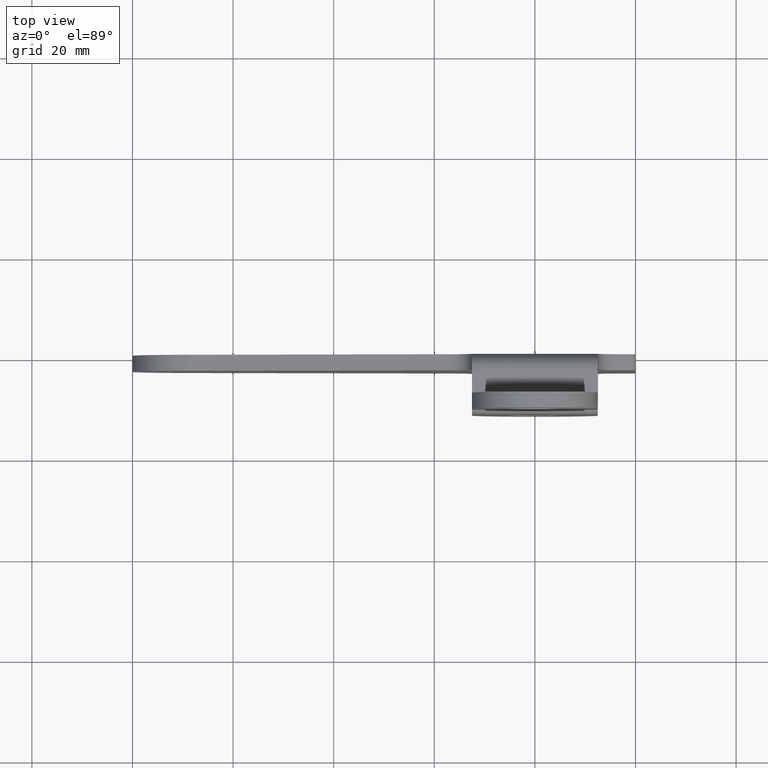
[diagram: clean part render]
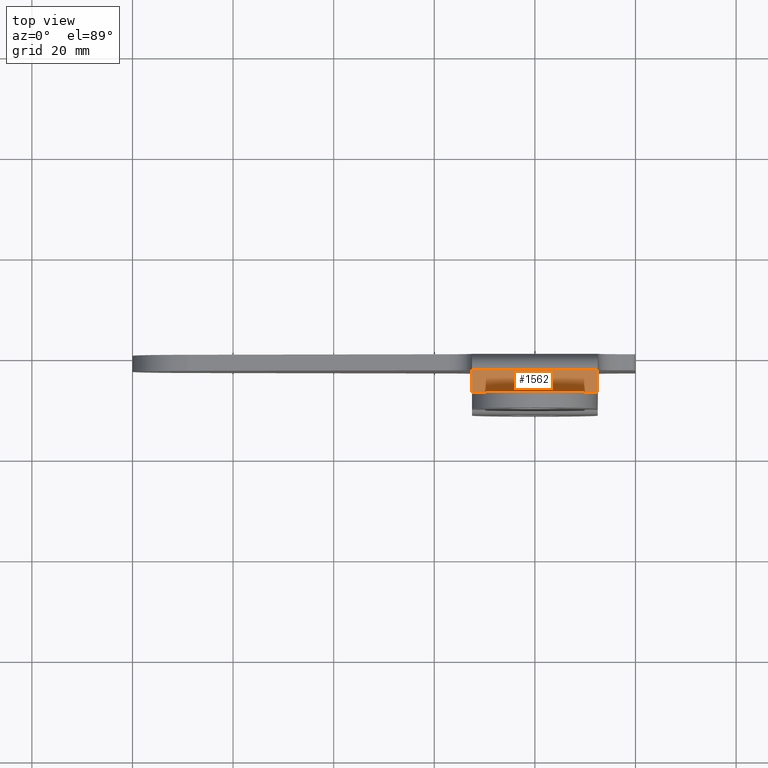
[diagram: same view with one face highlighted and labeled with its STEP entity id]
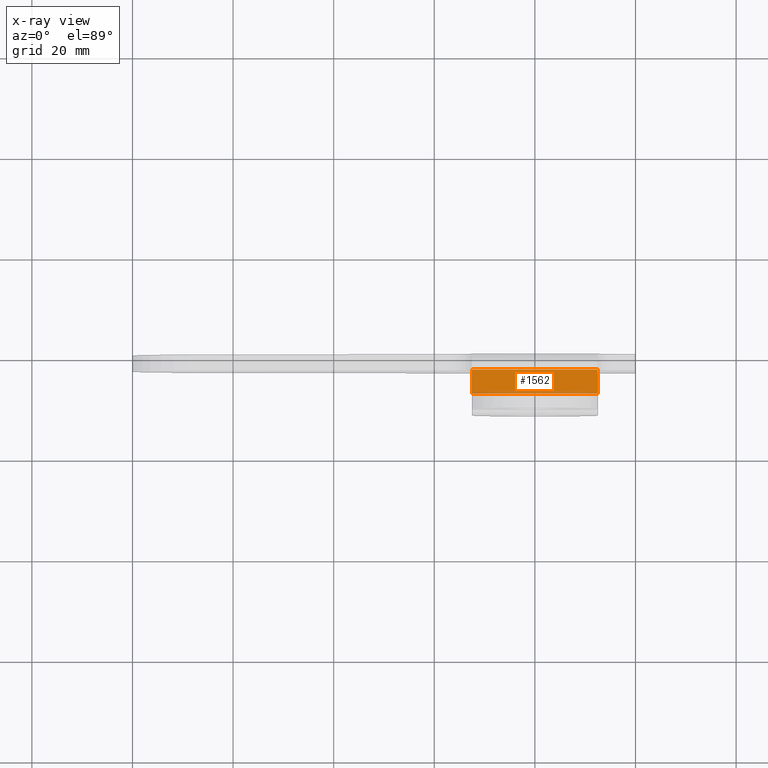
[diagram: x-ray of the same camera — body ghosted, the highlighted face saturated]
A machine part, top view. The second image highlights one B-rep face of the part: STEP entity #1562.
The next image is the same camera in x-ray: the body ghosted, the highlighted face saturated — about 8% of this face is hidden behind the body in this view.
In plain terms, the highlighted face is a freeform B-spline surface patch.
Its self-contained STEP definition (entity closure, byte-faithful):
#1123=CARTESIAN_POINT('',(-12.500000000000000,-3.200000000000000,26.199999999999999));
#1124=VERTEX_POINT('',#1123);
#1125=CARTESIAN_POINT('',(-12.500000000000000,-8.0,26.199999999999999));
#1126=VERTEX_POINT('',#1125);
#1127=CARTESIAN_POINT('',(-12.500000000000000,-3.200000000000000,26.199999999999999));
#1128=CARTESIAN_POINT('',(-12.500000000000000,-8.0,26.199999999999999));
#1129=QUASI_UNIFORM_CURVE('',1,(#1127,#1128),.UNSPECIFIED.,.F.,.U.);
#1130=EDGE_CURVE('',#1124,#1126,#1129,.T.);
#1287=CARTESIAN_POINT('',(12.500000000000000,-3.200000000000000,26.199999999999999));
#1288=VERTEX_POINT('',#1287);
#1302=CARTESIAN_POINT('',(12.500000000000000,-8.0,26.199999999999999));
#1303=VERTEX_POINT('',#1302);
#1304=CARTESIAN_POINT('',(12.500000000000000,-8.0,26.199999999999999));
#1305=CARTESIAN_POINT('',(12.500000000000000,-3.200000000000000,26.199999999999999));
#1306=QUASI_UNIFORM_CURVE('',1,(#1304,#1305),.UNSPECIFIED.,.F.,.U.);
#1307=EDGE_CURVE('',#1303,#1288,#1306,.T.);
#1543=CARTESIAN_POINT('',(13.748749951545150,-8.239759990696669,26.199999999999999));
#1544=CARTESIAN_POINT('',(-13.748750622097401,-8.239759990696669,26.199999999999999));
#1545=CARTESIAN_POINT('',(13.748749951545150,-2.960239880557299,26.199999999999999));
#1546=CARTESIAN_POINT('',(-13.748750622097401,-2.960239880557299,26.199999999999999));
#1547=B_SPLINE_SURFACE_WITH_KNOTS('',1,1,((#1543,#1545),(#1544,#1546)),.UNSPECIFIED.,.F.,.F.,.U.,(2,2),(2,2),(0.0,27.497500573642551),(0.0,5.279520110139370),.UNSPECIFIED.);
#1548=CARTESIAN_POINT('',(-12.500000000000000,-8.0,26.199999999999999));
#1549=CARTESIAN_POINT('',(12.500000000000000,-8.0,26.199999999999999));
#1550=QUASI_UNIFORM_CURVE('',1,(#1548,#1549),.UNSPECIFIED.,.F.,.U.);
#1551=EDGE_CURVE('',#1126,#1303,#1550,.T.);
#1552=ORIENTED_EDGE('',*,*,#1551,.T.);
#1553=ORIENTED_EDGE('',*,*,#1307,.T.);
#1554=CARTESIAN_POINT('',(-12.500000000000000,-3.200000000000000,26.199999999999999));
#1555=CARTESIAN_POINT('',(12.500000000000000,-3.200000000000000,26.199999999999999));
#1556=QUASI_UNIFORM_CURVE('',1,(#1554,#1555),.UNSPECIFIED.,.F.,.U.);
#1557=EDGE_CURVE('',#1124,#1288,#1556,.T.);
#1558=ORIENTED_EDGE('',*,*,#1557,.F.);
#1559=ORIENTED_EDGE('',*,*,#1130,.T.);
#1560=EDGE_LOOP('',(#1552,#1553,#1558,#1559));
#1561=FACE_OUTER_BOUND('',#1560,.T.);
#1562=ADVANCED_FACE('',(#1561),#1547,.F.);